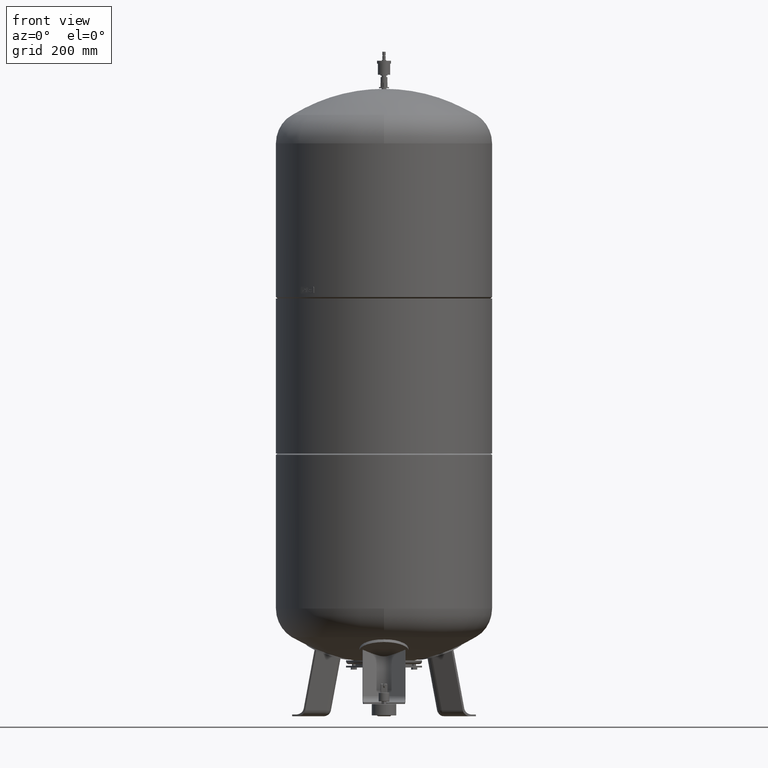
[diagram: clean part render]
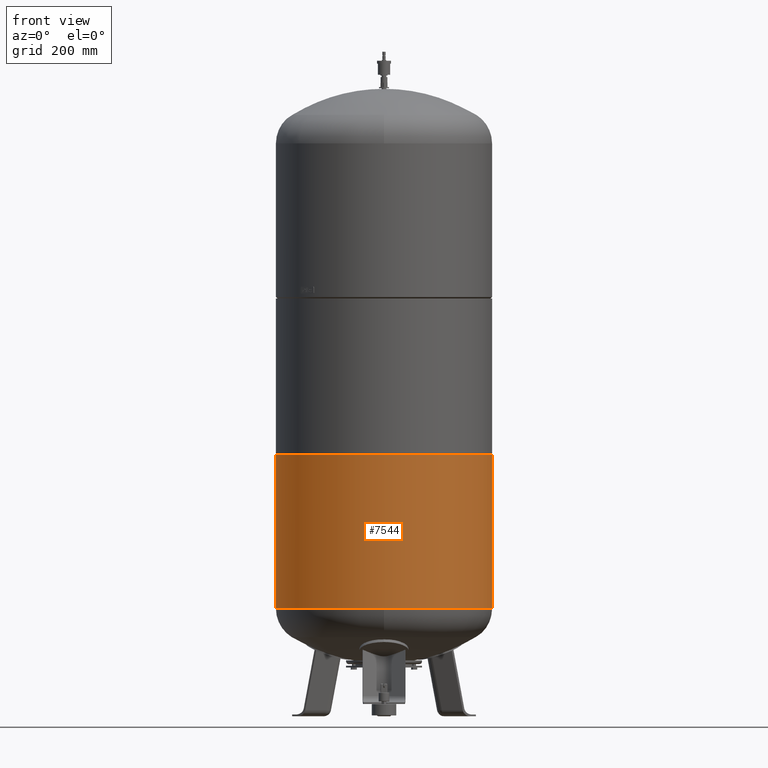
[diagram: same view with one face highlighted and labeled with its STEP entity id]
A machine part, front view. The second image highlights one B-rep face of the part: STEP entity #7544.
In plain terms, the highlighted cylindrical surface (partial cylindrical patch) has radius 370 mm, axis along (0, 0, 1).
Its self-contained STEP definition (entity closure, byte-faithful):
#7478=CARTESIAN_POINT('',(370.000000000000230,0.0,894.666666666666520));
#7479=VERTEX_POINT('',#7478);
#7495=CARTESIAN_POINT('',(-370.000000000000060,-4.531044E-014,894.666666666666400));
#7496=VERTEX_POINT('',#7495);
#7503=CARTESIAN_POINT('',(-5.667479E-015,0.0,894.666666666666400));
#7504=DIRECTION('',(0.0,0.0,1.0));
#7505=DIRECTION('',(1.0,0.0,0.0));
#7506=AXIS2_PLACEMENT_3D('',#7503,#7504,#7505);
#7507=CIRCLE('',#7506,370.000000000000230);
#7508=EDGE_CURVE('',#7496,#7479,#7507,.T.);
#7513=CARTESIAN_POINT('',(-1.117772E-014,0.0,631.833333333333030));
#7514=DIRECTION('',(2.096478E-017,0.0,1.0));
#7515=DIRECTION('',(1.0,0.0,0.0));
#7516=AXIS2_PLACEMENT_3D('',#7513,#7514,#7515);
#7517=CYLINDRICAL_SURFACE('',#7516,370.000000000000060);
#7518=CARTESIAN_POINT('',(369.999999999999940,0.0,368.999999999999890));
#7519=VERTEX_POINT('',#7518);
#7520=CARTESIAN_POINT('',(370.000000000000230,0.0,894.666666666666520));
#7521=DIRECTION('',(0.0,0.0,-1.0));
#7522=VECTOR('',#7521,525.666666666666630);
#7523=LINE('',#7520,#7522);
#7524=EDGE_CURVE('',#7479,#7519,#7523,.T.);
#7525=ORIENTED_EDGE('',*,*,#7524,.F.);
#7526=ORIENTED_EDGE('',*,*,#7508,.F.);
#7527=CARTESIAN_POINT('',(-370.000000000000060,-4.531044E-014,369.0));
#7528=VERTEX_POINT('',#7527);
#7529=CARTESIAN_POINT('',(-370.000000000000060,-4.531044E-014,894.666666666666400));
#7530=DIRECTION('',(0.0,0.0,-1.0));
#7531=VECTOR('',#7530,525.666666666666400);
#7532=LINE('',#7529,#7531);
#7533=EDGE_CURVE('',#7496,#7528,#7532,.T.);
#7534=ORIENTED_EDGE('',*,*,#7533,.T.);
#7535=CARTESIAN_POINT('',(-1.668796E-014,0.0,369.0));
#7536=DIRECTION('',(0.0,0.0,1.0));
#7537=DIRECTION('',(1.0,0.0,0.0));
#7538=AXIS2_PLACEMENT_3D('',#7535,#7536,#7537);
#7539=CIRCLE('',#7538,369.999999999999940);
#7540=EDGE_CURVE('',#7528,#7519,#7539,.T.);
#7541=ORIENTED_EDGE('',*,*,#7540,.T.);
#7542=EDGE_LOOP('',(#7525,#7526,#7534,#7541));
#7543=FACE_OUTER_BOUND('',#7542,.T.);
#7544=ADVANCED_FACE('',(#7543),#7517,.T.);